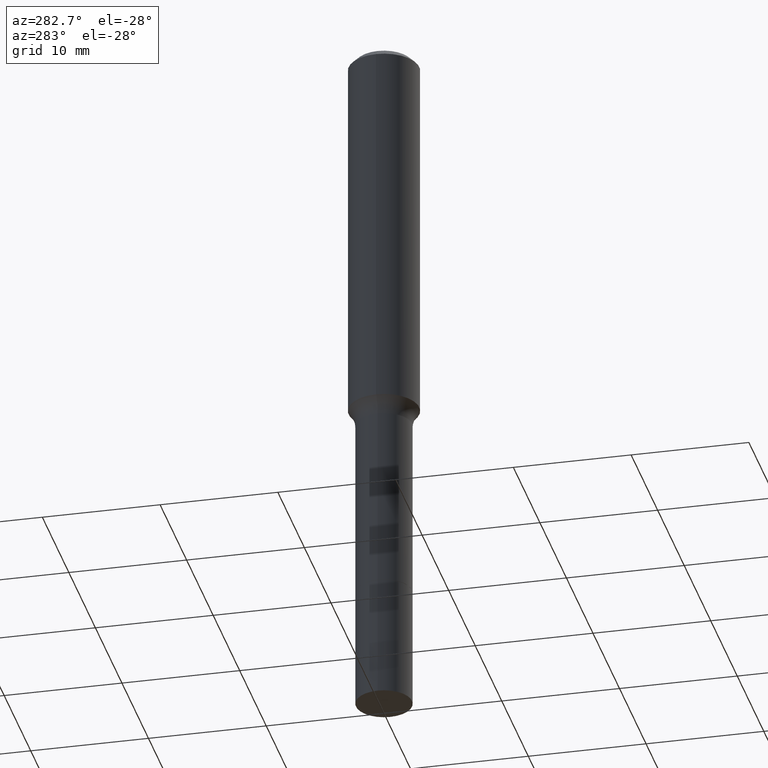
[diagram: clean part render]
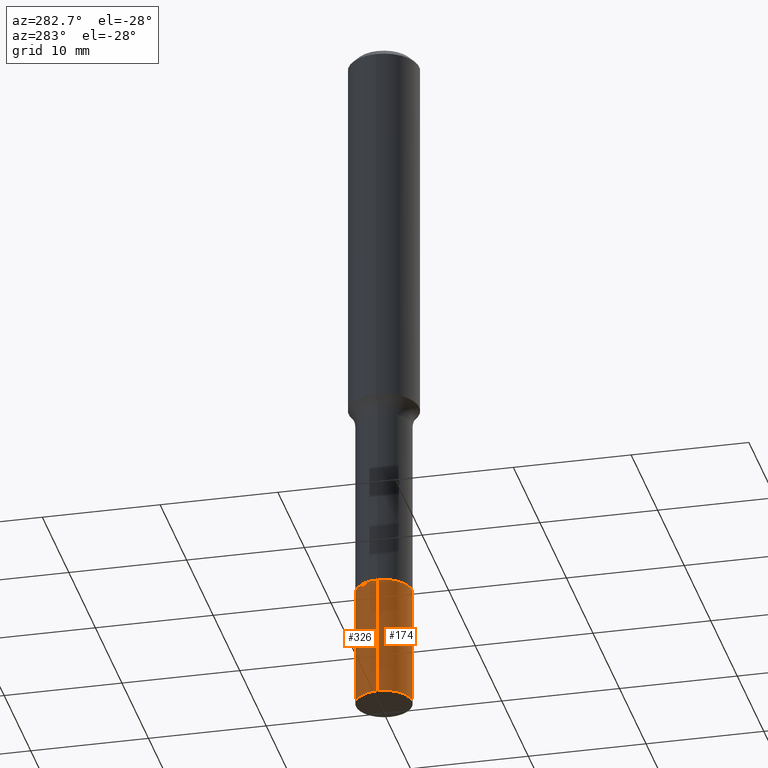
[diagram: same view with one multi-face feature highlighted, each face labeled with its STEP entity id]
A machine part, auxiliary view. The highlighted faces form ONE feature: a constant-radius fillet chain: 2 tangent blend faces with common blend radius 2.3813 mm. The faces share edges in the B-rep.
Their STEP definitions:
[1] entity #326 (Cylinder):
#19 = EDGE_CURVE ( 'NONE', #376, #143, #399, .T. ) ;
#23 = VERTEX_POINT ( 'NONE', #414 ) ;
#30 = DIRECTION ( 'NONE',  ( 1.000000000000000000, -6.982962677686273021E-15, 0.000000000000000000 ) ) ;
#34 = CARTESIAN_POINT ( 'NONE',  ( 5.776686413970529753E-29, -8.247577218615279626E-15, -2.362200000000000077 ) ) ;
#43 = VERTEX_POINT ( 'NONE', #377 ) ;
#62 = EDGE_CURVE ( 'NONE', #43, #23, #127, .T. ) ;
#77 = EDGE_LOOP ( 'NONE', ( #189, #272, #222, #355 ) ) ;
#127 = CIRCLE ( 'NONE', #194, 0.09375000000000001388 ) ;
#130 = AXIS2_PLACEMENT_3D ( 'NONE', #347, #268, #196 ) ;
#142 = DIRECTION ( 'NONE',  ( -2.445468806185136597E-29, 3.491481338843145583E-15, 1.000000000000000000 ) ) ;
#143 = VERTEX_POINT ( 'NONE', #293 ) ;
#159 = DIRECTION ( 'NONE',  ( -2.445468806185136877E-29, 3.491481338843145188E-15, 1.000000000000000000 ) ) ;
#165 = LINE ( 'NONE', #328, #360 ) ;
#189 = ORIENTED_EDGE ( 'NONE', *, *, #19, .T. ) ;
#194 = AXIS2_PLACEMENT_3D ( 'NONE', #504, #142, #464 ) ;
#196 = DIRECTION ( 'NONE',  ( 1.000000000000000000, -6.982962677686267499E-15, 0.000000000000000000 ) ) ;
#222 = ORIENTED_EDGE ( 'NONE', *, *, #62, .F. ) ;
#268 = DIRECTION ( 'NONE',  ( -2.445468806185136597E-29, 3.491481338843145583E-15, 1.000000000000000000 ) ) ;
#272 = ORIENTED_EDGE ( 'NONE', *, *, #287, .T. ) ;
#273 = FACE_OUTER_BOUND ( 'NONE', #77, .T. ) ;
#287 = EDGE_CURVE ( 'NONE', #143, #23, #165, .T. ) ;
#293 = CARTESIAN_POINT ( 'NONE',  ( -0.09375000000000013878, -6.867435470046759977E-15, -2.362200000000000077 ) ) ;
#298 = DIRECTION ( 'NONE',  ( -2.445468806185136597E-29, 3.491481338843145583E-15, 1.000000000000000000 ) ) ;
#326 = ADVANCED_FACE ( 'NONE', ( #273 ), #463, .T. ) ;
#328 = CARTESIAN_POINT ( 'NONE',  ( -0.09375000000000006939, -6.153427536253337407E-15, -1.953200000000000047 ) ) ;
#333 = VECTOR ( 'NONE', #159, 39.37007874015748143 ) ;
#347 = CARTESIAN_POINT ( 'NONE',  ( 4.776489672240809284E-29, -6.819561351028432120E-15, -1.953200000000000047 ) ) ;
#355 = ORIENTED_EDGE ( 'NONE', *, *, #512, .F. ) ;
#360 = VECTOR ( 'NONE', #495, 39.37007874015748143 ) ;
#376 = VERTEX_POINT ( 'NONE', #389 ) ;
#377 = CARTESIAN_POINT ( 'NONE',  ( 0.09375000000000001388, -7.474214102061519624E-15, -1.953200000000000047 ) ) ;
#389 = CARTESIAN_POINT ( 'NONE',  ( 0.09375000000000013878, -8.902229969648367919E-15, -2.362200000000000077 ) ) ;
#397 = LINE ( 'NONE', #493, #333 ) ;
#399 = CIRCLE ( 'NONE', #460, 0.09375000000000013878 ) ;
#414 = CARTESIAN_POINT ( 'NONE',  ( -0.09375000000000001388, -6.867435470046760766E-15, -1.953200000000000047 ) ) ;
#460 = AXIS2_PLACEMENT_3D ( 'NONE', #34, #298, #30 ) ;
#463 = CYLINDRICAL_SURFACE ( 'NONE', #130, 0.09375000000000006939 ) ;
#464 = DIRECTION ( 'NONE',  ( 1.000000000000000000, -6.982962677686261189E-15, 0.000000000000000000 ) ) ;
#493 = CARTESIAN_POINT ( 'NONE',  ( 0.09375000000000006939, -7.474214102061519624E-15, -1.953200000000000047 ) ) ;
#495 = DIRECTION ( 'NONE',  ( -2.445468806185136877E-29, 3.491481338843145188E-15, 1.000000000000000000 ) ) ;
#504 = CARTESIAN_POINT ( 'NONE',  ( 4.776489672240809284E-29, -6.819561351028432120E-15, -1.953200000000000047 ) ) ;
#512 = EDGE_CURVE ( 'NONE', #376, #43, #397, .T. ) ;
[2] entity #174 (Cylinder):
#12 = DIRECTION ( 'NONE',  ( 1.000000000000000000, -6.982962677686261189E-15, 0.000000000000000000 ) ) ;
#23 = VERTEX_POINT ( 'NONE', #414 ) ;
#36 = EDGE_LOOP ( 'NONE', ( #427, #344, #117, #191 ) ) ;
#43 = VERTEX_POINT ( 'NONE', #377 ) ;
#60 = CARTESIAN_POINT ( 'NONE',  ( 5.776686413970529753E-29, -8.247577218615279626E-15, -2.362200000000000077 ) ) ;
#85 = AXIS2_PLACEMENT_3D ( 'NONE', #494, #87, #248 ) ;
#87 = DIRECTION ( 'NONE',  ( -2.445468806185136597E-29, 3.491481338843145583E-15, 1.000000000000000000 ) ) ;
#117 = ORIENTED_EDGE ( 'NONE', *, *, #512, .T. ) ;
#128 = DIRECTION ( 'NONE',  ( -2.445468806185136597E-29, 3.491481338843145583E-15, 1.000000000000000000 ) ) ;
#143 = VERTEX_POINT ( 'NONE', #293 ) ;
#159 = DIRECTION ( 'NONE',  ( -2.445468806185136877E-29, 3.491481338843145188E-15, 1.000000000000000000 ) ) ;
#165 = LINE ( 'NONE', #328, #360 ) ;
#174 = ADVANCED_FACE ( 'NONE', ( #285 ), #453, .T. ) ;
#191 = ORIENTED_EDGE ( 'NONE', *, *, #243, .F. ) ;
#208 = AXIS2_PLACEMENT_3D ( 'NONE', #60, #128, #448 ) ;
#211 = DIRECTION ( 'NONE',  ( -2.445468806185136597E-29, 3.491481338843145583E-15, 1.000000000000000000 ) ) ;
#243 = EDGE_CURVE ( 'NONE', #23, #43, #367, .T. ) ;
#248 = DIRECTION ( 'NONE',  ( 1.000000000000000000, -6.982962677686267499E-15, 0.000000000000000000 ) ) ;
#285 = FACE_OUTER_BOUND ( 'NONE', #36, .T. ) ;
#287 = EDGE_CURVE ( 'NONE', #143, #23, #165, .T. ) ;
#288 = CARTESIAN_POINT ( 'NONE',  ( 4.776489672240809284E-29, -6.819561351028432120E-15, -1.953200000000000047 ) ) ;
#293 = CARTESIAN_POINT ( 'NONE',  ( -0.09375000000000013878, -6.867435470046759977E-15, -2.362200000000000077 ) ) ;
#294 = EDGE_CURVE ( 'NONE', #143, #376, #496, .T. ) ;
#328 = CARTESIAN_POINT ( 'NONE',  ( -0.09375000000000006939, -6.153427536253337407E-15, -1.953200000000000047 ) ) ;
#333 = VECTOR ( 'NONE', #159, 39.37007874015748143 ) ;
#344 = ORIENTED_EDGE ( 'NONE', *, *, #294, .T. ) ;
#360 = VECTOR ( 'NONE', #495, 39.37007874015748143 ) ;
#367 = CIRCLE ( 'NONE', #372, 0.09375000000000001388 ) ;
#372 = AXIS2_PLACEMENT_3D ( 'NONE', #288, #211, #12 ) ;
#376 = VERTEX_POINT ( 'NONE', #389 ) ;
#377 = CARTESIAN_POINT ( 'NONE',  ( 0.09375000000000001388, -7.474214102061519624E-15, -1.953200000000000047 ) ) ;
#389 = CARTESIAN_POINT ( 'NONE',  ( 0.09375000000000013878, -8.902229969648367919E-15, -2.362200000000000077 ) ) ;
#397 = LINE ( 'NONE', #493, #333 ) ;
#414 = CARTESIAN_POINT ( 'NONE',  ( -0.09375000000000001388, -6.867435470046760766E-15, -1.953200000000000047 ) ) ;
#427 = ORIENTED_EDGE ( 'NONE', *, *, #287, .F. ) ;
#448 = DIRECTION ( 'NONE',  ( 1.000000000000000000, -6.982962677686273021E-15, 0.000000000000000000 ) ) ;
#453 = CYLINDRICAL_SURFACE ( 'NONE', #85, 0.09375000000000006939 ) ;
#493 = CARTESIAN_POINT ( 'NONE',  ( 0.09375000000000006939, -7.474214102061519624E-15, -1.953200000000000047 ) ) ;
#494 = CARTESIAN_POINT ( 'NONE',  ( 4.776489672240809284E-29, -6.819561351028432120E-15, -1.953200000000000047 ) ) ;
#495 = DIRECTION ( 'NONE',  ( -2.445468806185136877E-29, 3.491481338843145188E-15, 1.000000000000000000 ) ) ;
#496 = CIRCLE ( 'NONE', #208, 0.09375000000000013878 ) ;
#512 = EDGE_CURVE ( 'NONE', #376, #43, #397, .T. ) ;